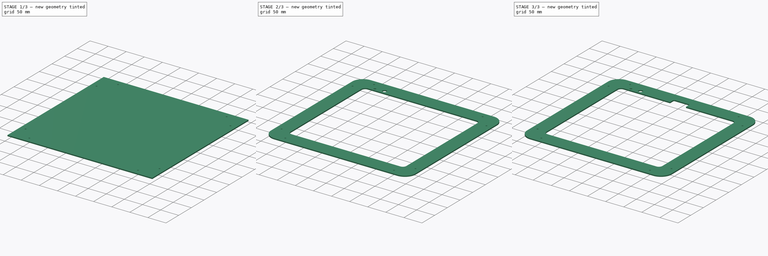
[diagram: build sequence overview — one tinted view per stage of 3, left to right]
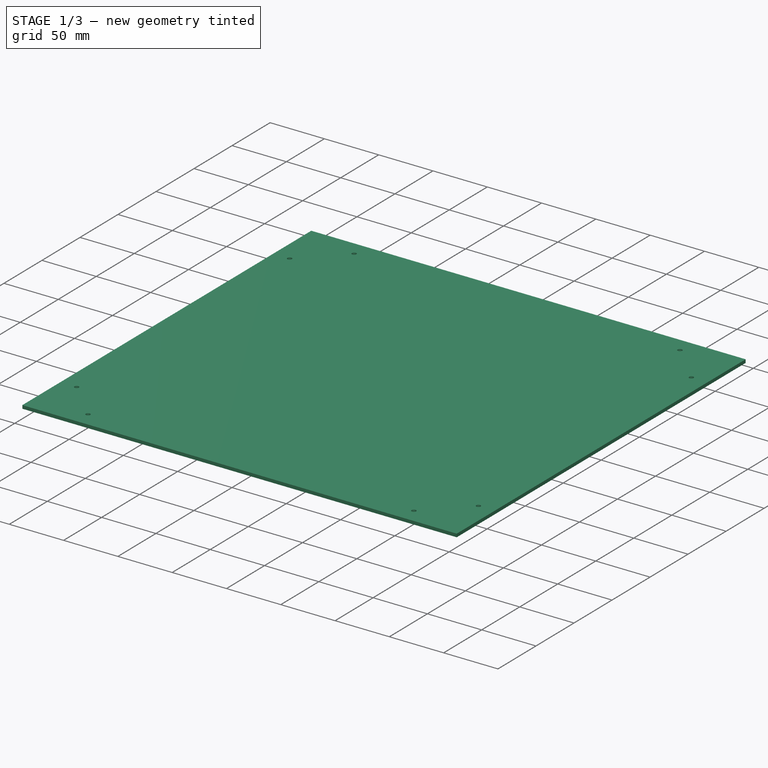
[diagram: stage 1 of 3 — iso view after this stage's code; geometry added in this stage tinted green]
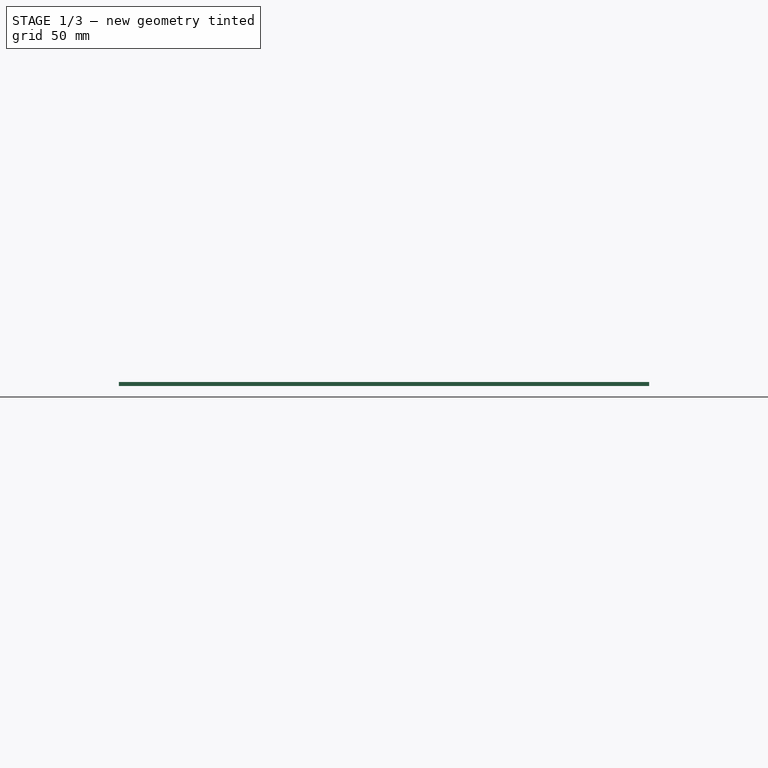
[diagram: stage 1 of 3 — front view after this stage's code; geometry added in this stage tinted green]
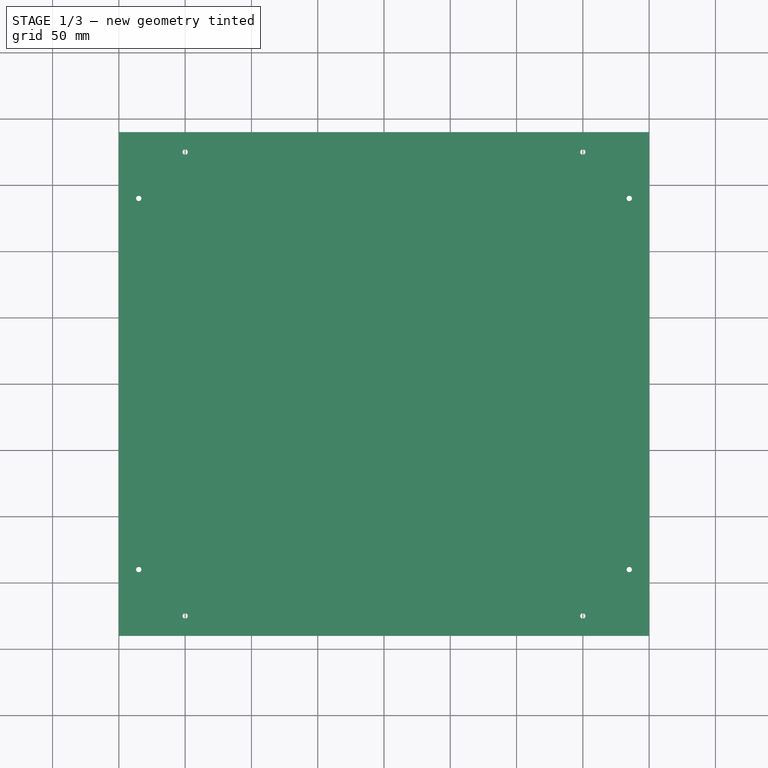
[diagram: stage 1 of 3 — top view after this stage's code; geometry added in this stage tinted green]
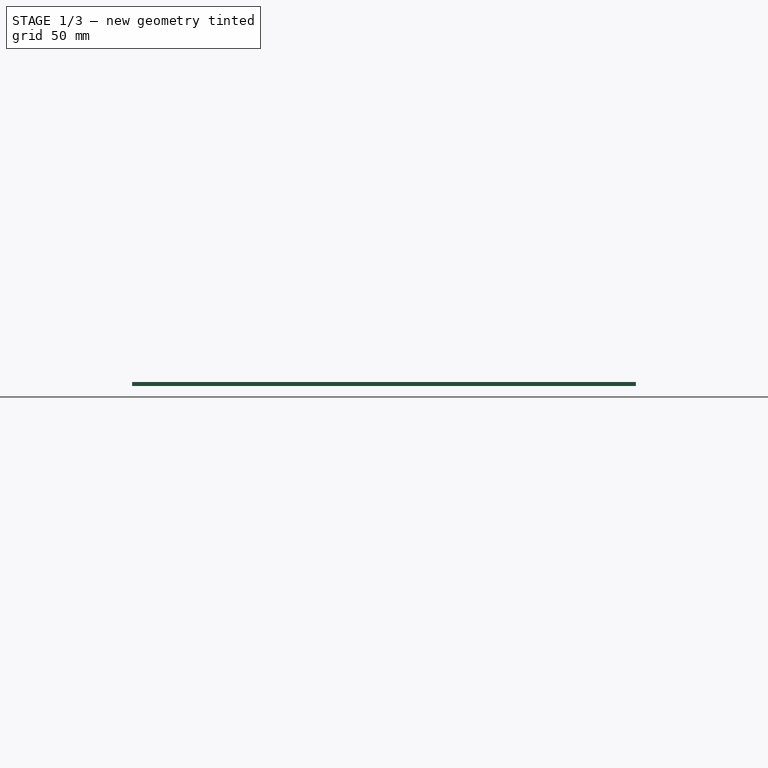
[diagram: stage 1 of 3 — right view after this stage's code; geometry added in this stage tinted green]
FCSTD DOCUMENT  (FreeCAD 0.17R13519 (Git))
Label: Corelia_0_Top_plate
License: All rights reserved
LicenseURL: http://en.wikipedia.org/wiki/All_rights_reserved
objects: Sketcher::SketchObject×5, PartDesign::Pocket×4, PartDesign::Fillet×2, PartDesign::Pad×1, PartDesign::Body×1, TechDraw::DrawSVGTemplate×1, TechDraw::DrawViewPart×1, TechDraw::DrawPage×1
note: 18 computed .brp shape members not serialized (recipe doc carries the construction recipe); baked Part::Feature solids carry a one-line shape summary decoded from their .brp

FEATURE [Sketcher::SketchObject] Sketch
  MapMode = 5
  Support = -> [XY_Plane]
  sketch-geometry (4):
    g0: LineSegment StartX=-200 StartY=190 StartZ=0 EndX=200 EndY=190 EndZ=0
    g1: LineSegment StartX=200 StartY=190 StartZ=0 EndX=200 EndY=-190 EndZ=0
    g2: LineSegment StartX=200 StartY=-190 StartZ=0 EndX=-200 EndY=-190 EndZ=0
    g3: LineSegment StartX=-200 StartY=-190 StartZ=0 EndX=-200 EndY=190 EndZ=0
  constraints (12):
    c: Coincident(g0,g1)
    c: Coincident(g1,g2)
    c: Coincident(g2,g3)
    c: Coincident(g3,g0)
    c: Horizontal(g0)
    c: Horizontal(g2)
    c: Vertical(g1)
    c: Vertical(g3)
    c: Symmetric(g0,g0,g-2)
    c: Symmetric(g0,g2,g-1)
    c: DistanceY(g3,g3) = 380
    c: DistanceX(g2,g2) = 400
FEATURE [PartDesign::Pad] Pad
  Length = 3
  Length2 = 100
  Profile = -> Sketch
  Type = 0
FEATURE [Sketcher::SketchObject] Sketch001
  MapMode = 5
  Placement = pos=(0,0,3) rot=(0,0,1;0rad)
  Support = -> [Pad]
  sketch-geometry (16):
    g0: LineSegment [constr] StartX=-185 StartY=140 StartZ=0 EndX=185 EndY=140 EndZ=0
    g1: LineSegment [constr] StartX=185 StartY=140 StartZ=0 EndX=185 EndY=-140 EndZ=0
    g2: LineSegment [constr] StartX=185 StartY=-140 StartZ=0 EndX=-185 EndY=-140 EndZ=0
    g3: LineSegment [constr] StartX=-185 StartY=-140 StartZ=0 EndX=-185 EndY=140 EndZ=0
    g4: LineSegment [constr] StartX=-150 StartY=175 StartZ=0 EndX=150 EndY=175 EndZ=0
    g5: LineSegment [constr] StartX=150 StartY=175 StartZ=0 EndX=150 EndY=-175 EndZ=0
    g6: LineSegment [constr] StartX=150 StartY=-175 StartZ=0 EndX=-150 EndY=-175 EndZ=0
    g7: LineSegment [constr] StartX=-150 StartY=-175 StartZ=0 EndX=-150 EndY=175 EndZ=0
    g8: Circle CenterX=-150 CenterY=175 CenterZ=0 NormalX=0 NormalY=0 NormalZ=1 AngleXU=0 Radius=2
    g9: Circle CenterX=-185 CenterY=140 CenterZ=0 NormalX=0 NormalY=0 NormalZ=1 AngleXU=0 Radius=2
    g10: Circle CenterX=-185 CenterY=-140 CenterZ=0 NormalX=0 NormalY=0 NormalZ=1 AngleXU=0 Radius=2
    g11: Circle CenterX=-150 CenterY=-175 CenterZ=0 NormalX=0 NormalY=0 NormalZ=1 AngleXU=0 Radius=2
    g12: Circle CenterX=150 CenterY=-175 CenterZ=0 NormalX=0 NormalY=0 NormalZ=1 AngleXU=0 Radius=2
    g13: Circle CenterX=185 CenterY=-140 CenterZ=0 NormalX=0 NormalY=0 NormalZ=1 AngleXU=0 Radius=2
    g14: Circle CenterX=185 CenterY=140 CenterZ=0 NormalX=0 NormalY=0 NormalZ=1 AngleXU=0 Radius=2
    g15: Circle CenterX=150 CenterY=175 CenterZ=0 NormalX=0 NormalY=0 NormalZ=1 AngleXU=0 Radius=2
  constraints (40):
    c: Coincident(g0,g1)
    c: Coincident(g1,g2)
    c: Coincident(g2,g3)
    c: Coincident(g3,g0)
    c: Horizontal(g0)
    c: Horizontal(g2)
    c: Vertical(g1)
    c: Vertical(g3)
    c: Coincident(g4,g5)
    c: Coincident(g5,g6)
    c: Coincident(g6,g7)
    c: Coincident(g7,g4)
    c: Horizontal(g4)
    c: Horizontal(g6)
    c: Vertical(g5)
    c: Vertical(g7)
    c: Coincident(g8,g4)
    c: Coincident(g9,g0)
    c: Coincident(g10,g2)
    c: Coincident(g11,g6)
    c: Coincident(g12,g5)
    c: Coincident(g13,g1)
    c: Coincident(g14,g0)
    c: Coincident(g15,g4)
    c: Equal(g9,g8)
    c: Equal(g8,g15)
    c: Equal(g15,g14)
    c: Equal(g14,g13)
    c: Equal(g13,g12)
    c: Equal(g12,g11)
    c: Equal(g11,g10)
    c: Radius(g9) = 2
    c: Symmetric(g4,g6,g-1)
    c: Symmetric(g2,g0,g-1)
    c: Symmetric(g4,g4,g-2)
    c: Symmetric(g0,g0,g-2)
    c: DistanceY(g3,g3) = 280
    c: DistanceY(g7,g7) = 350
    c: DistanceX(g6,g6) = 300
    c: DistanceX(g2,g2) = 370
FEATURE [PartDesign::Pocket] Pocket
  BaseFeature = -> Pad
  Length = 5
  Length2 = 100
  Profile = -> Sketch001
  Type = 1
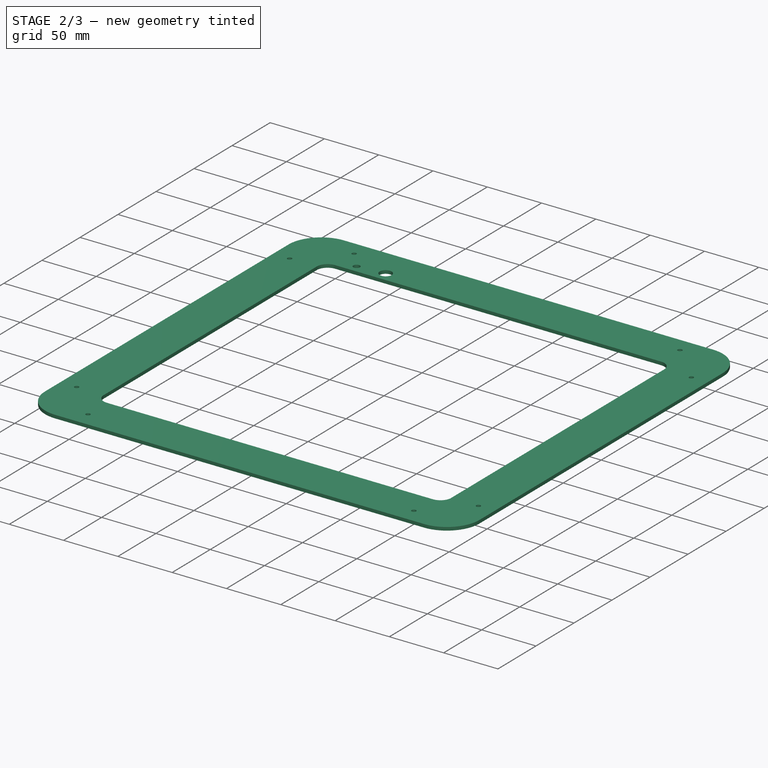
[diagram: stage 2 of 3 — iso view after this stage's code; geometry added in this stage tinted green]
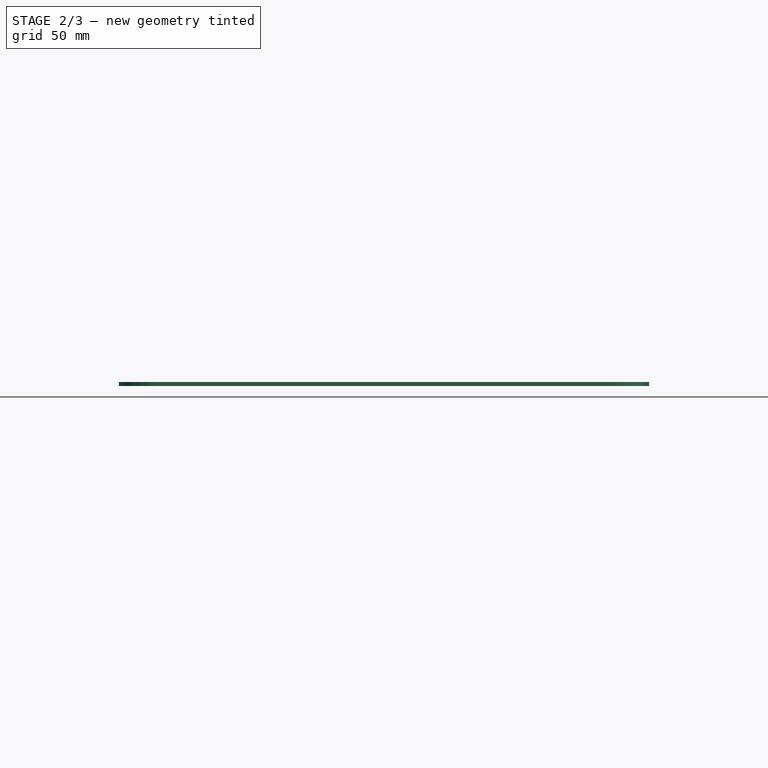
[diagram: stage 2 of 3 — front view after this stage's code; geometry added in this stage tinted green]
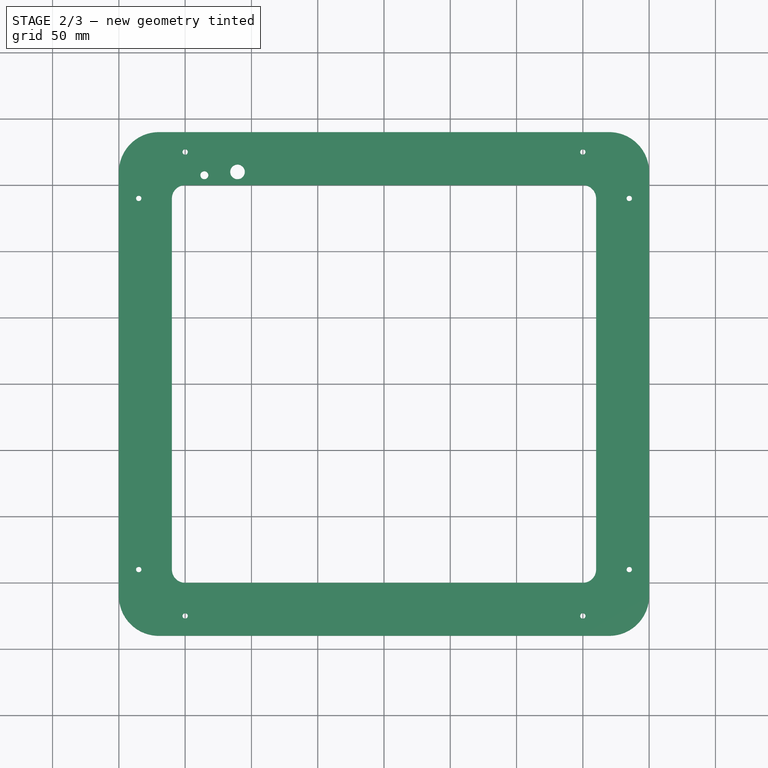
[diagram: stage 2 of 3 — top view after this stage's code; geometry added in this stage tinted green]
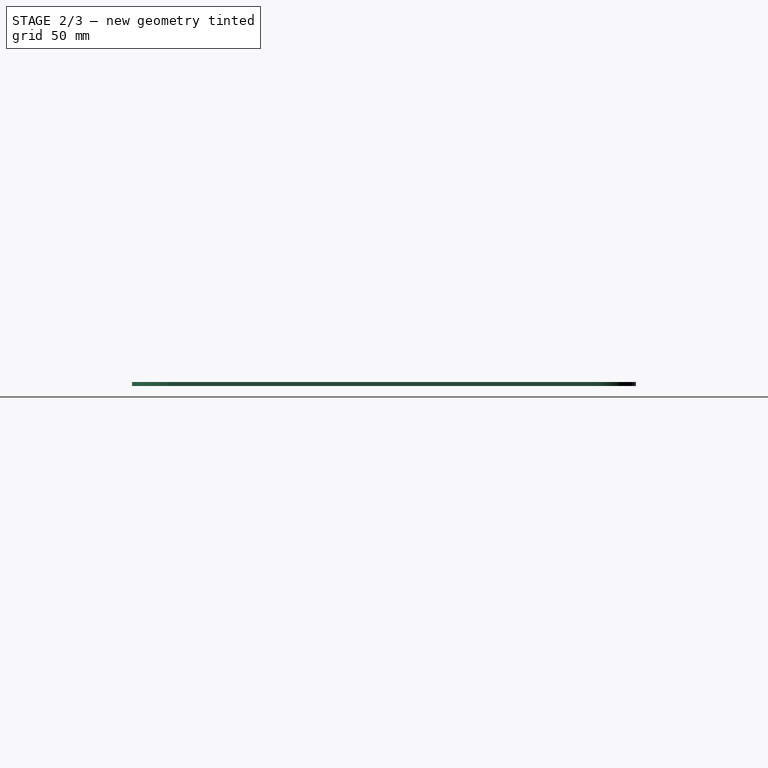
[diagram: stage 2 of 3 — right view after this stage's code; geometry added in this stage tinted green]
FEATURE [Sketcher::SketchObject] Sketch002
  MapMode = 5
  Placement = pos=(0,0,3) rot=(0,0,1;0rad)
  Support = -> [Pocket]
  sketch-geometry (8):
    g0: LineSegment StartX=-150 StartY=150 StartZ=0 EndX=150 EndY=150 EndZ=0
    g1: LineSegment StartX=160 StartY=140 StartZ=0 EndX=160 EndY=-140 EndZ=0
    g2: LineSegment StartX=150 StartY=-150 StartZ=0 EndX=-150 EndY=-150 EndZ=0
    g3: LineSegment StartX=-160 StartY=-140 StartZ=0 EndX=-160 EndY=140 EndZ=0
    g4: ArcOfCircle CenterX=-150 CenterY=140 CenterZ=0 NormalX=0 NormalY=0 NormalZ=1 AngleXU=0 Radius=10 StartAngle=1.5708 EndAngle=3.14159
    g5: ArcOfCircle CenterX=150 CenterY=140 CenterZ=0 NormalX=0 NormalY=0 NormalZ=1 AngleXU=0 Radius=10 StartAngle=0 EndAngle=1.5708
    g6: ArcOfCircle CenterX=-150 CenterY=-140 CenterZ=0 NormalX=0 NormalY=0 NormalZ=1 AngleXU=0 Radius=10 StartAngle=3.14159 EndAngle=4.71239
    g7: ArcOfCircle CenterX=150 CenterY=-140 CenterZ=0 NormalX=0 NormalY=0 NormalZ=1 AngleXU=0 Radius=10 StartAngle=4.71239 EndAngle=6.28319
  constraints (21):
    c: Horizontal(g0)
    c: Horizontal(g2)
    c: Vertical(g1)
    c: Vertical(g3)
    c: Tangent(g0,g4) = 1.5708
    c: Tangent(g3,g4) = 1.5708
    c: Tangent(g0,g5) = 1.5708
    c: Tangent(g1,g5) = 1.5708
    c: Tangent(g3,g6) = 1.5708
    c: Tangent(g2,g6) = 1.5708
    c: Tangent(g2,g7) = 1.5708
    c: Tangent(g1,g7) = 1.5708
    c: Equal(g6,g4)
    c: Equal(g4,g5)
    c: Equal(g3,g1)
    c: Equal(g0,g2)
    c: Radius(g4) = 10
    c: Symmetric(g6,g7,g-2)
    c: Symmetric(g4,g6,g-1)
    c: DistanceX(g3,g1) = 320
    c: DistanceY(g2,g0) = 300
FEATURE [PartDesign::Pocket] Pocket001
  BaseFeature = -> Pocket
  Length = 5
  Length2 = 100
  Profile = -> Sketch002
  Type = 1
FEATURE [Sketcher::SketchObject] Sketch003
  MapMode = 5
  Placement = pos=(0,0,3) rot=(0,0,1;0rad)
  Support = -> [Pocket001]
  sketch-geometry (4):
    g0: Circle CenterX=-135.5 CenterY=157.5 CenterZ=0 NormalX=0 NormalY=0 NormalZ=1 AngleXU=0 Radius=3
    g1: Circle CenterX=-110.5 CenterY=160 CenterZ=0 NormalX=0 NormalY=0 NormalZ=1 AngleXU=0 Radius=5.5
    g2: LineSegment [constr] StartX=-110.5 StartY=154.5 StartZ=0 EndX=-135.5 EndY=154.5 EndZ=0
    g3: LineSegment [constr] StartX=-135.5 StartY=157.5 StartZ=0 EndX=-135.5 EndY=154.5 EndZ=0
  constraints (12):
    c: Radius(g0) = 3
    c: Radius(g1) = 5.5
    c: DistanceX(g0,g1) = 25
    c: DistanceX(g1) = -110.5
    c: DistanceY(g1) = 160
    c: PointOnObject(g2,g1)
    c: PointOnObject(g2,g0)
    c: Tangent(g2,g1)
    c: Horizontal(g2)
    c: Coincident(g3,g0)
    c: Coincident(g3,g2)
    c: Vertical(g3)
FEATURE [PartDesign::Pocket] Pocket002
  BaseFeature = -> Pocket001
  Length = 5
  Length2 = 100
  Profile = -> Sketch003
  Type = 1
FEATURE [PartDesign::Fillet] Fillet
  Base = -> Pocket002 [Edge5,Edge1,Edge2,Edge8]
  BaseFeature = -> Pocket002
  Radius = 30.16
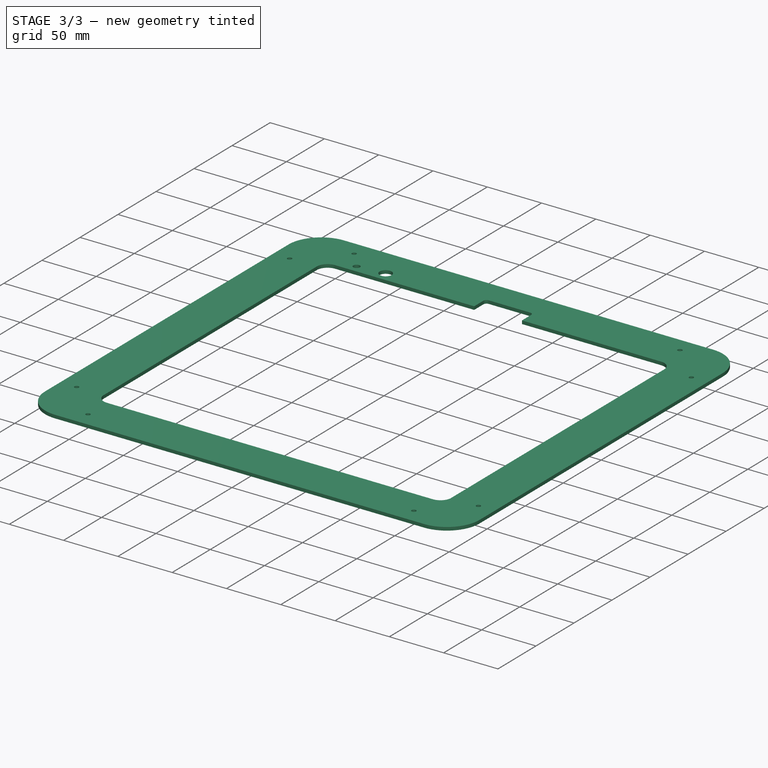
[diagram: stage 3 of 3 — iso view after this stage's code; geometry added in this stage tinted green]
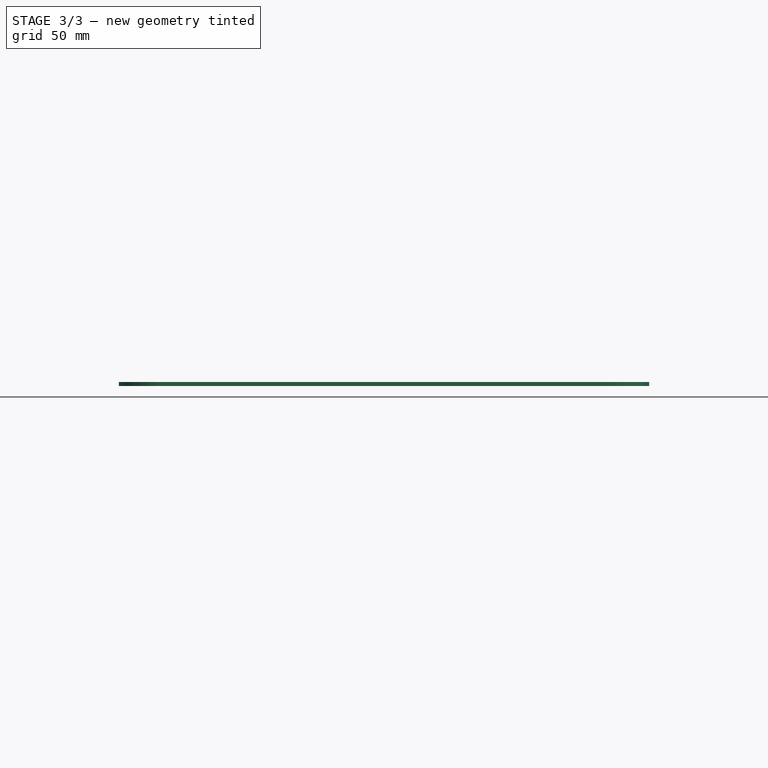
[diagram: stage 3 of 3 — front view after this stage's code; geometry added in this stage tinted green]
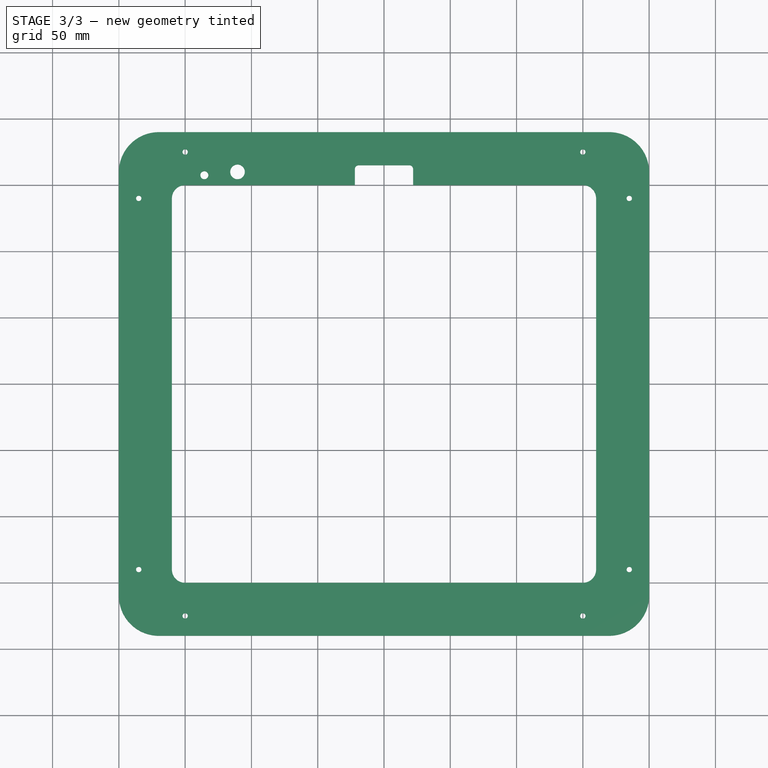
[diagram: stage 3 of 3 — top view after this stage's code; geometry added in this stage tinted green]
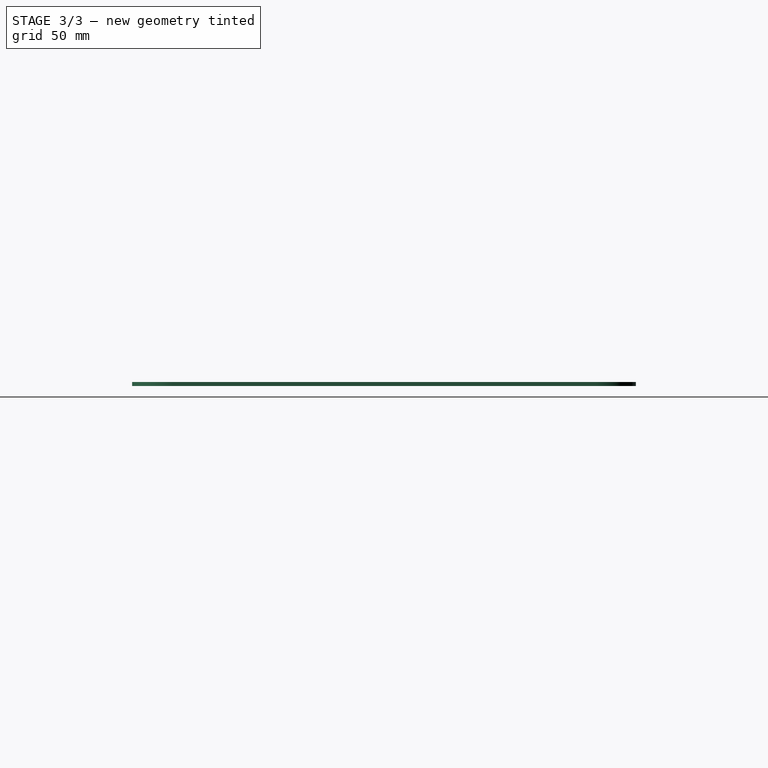
[diagram: stage 3 of 3 — right view after this stage's code; geometry added in this stage tinted green]
FEATURE [Sketcher::SketchObject] Sketch004
  MapMode = 5
  Placement = pos=(0,0,3) rot=(0,0,1;0rad)
  Support = -> [Fillet]
  sketch-geometry (4):
    g0: LineSegment StartX=-22 StartY=165 StartZ=0 EndX=22 EndY=165 EndZ=0
    g1: LineSegment StartX=22 StartY=165 StartZ=0 EndX=22 EndY=121 EndZ=0
    g2: LineSegment StartX=22 StartY=121 StartZ=0 EndX=-22 EndY=121 EndZ=0
    g3: LineSegment StartX=-22 StartY=121 StartZ=0 EndX=-22 EndY=165 EndZ=0
  constraints (12):
    c: Coincident(g0,g1)
    c: Coincident(g1,g2)
    c: Coincident(g2,g3)
    c: Coincident(g3,g0)
    c: Horizontal(g0)
    c: Horizontal(g2)
    c: Vertical(g1)
    c: Vertical(g3)
    c: DistanceY(g3,g3) = 44
    c: DistanceX(g2,g2) = 44
    c: Symmetric(g2,g1,g-2)
    c: DistanceY(g1) = 121
FEATURE [PartDesign::Pocket] Pocket003
  BaseFeature = -> Fillet
  Length = 5
  Length2 = 100
  Profile = -> Sketch004
  Type = 1
FEATURE [PartDesign::Fillet] Fillet001
  Base = -> Pocket003 [Edge78,Edge79]
  BaseFeature = -> Pocket003
  Radius = 3
FEATURE [PartDesign::Body] Body
  Group = -> [Sketch,Pad,Sketch001,Pocket,Sketch002,Pocket001,Sketch003,Pocket002,Fillet,Sketch004,Pocket003,Fillet001]
  Origin = -> Origin
  Tip = -> Fillet001
FEATURE [TechDraw::DrawSVGTemplate] Template
  Height = 420
  Orientation = 1
  Width = 594
FEATURE [TechDraw::DrawViewPart] View
  CoarseView = false
  Direction = (0,0,1)
  Focus = 100
  HardHidden = false
  IsoCount = 0
  IsoHidden = false
  IsoVisible = false
  LockPosition = false
  Perspective = false
  Rotation = 0
  ScaleType = 0
  SeamHidden = false
  SeamVisible = false
  SmoothHidden = false
  SmoothVisible = false
  Source = -> [Fillet001]
  X = 297
  Y = 210
FEATURE [TechDraw::DrawPage] Page
  KeepUpdated = true
  ProjectionType = 0
  Template = -> Template
  Views = -> [View]
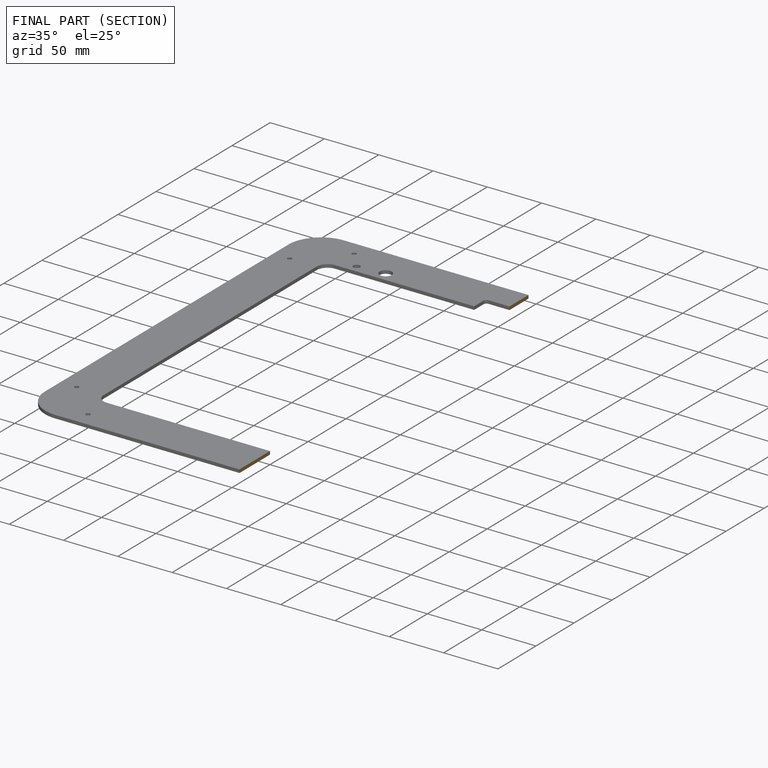
[diagram: finished part — half-section view (interior)]
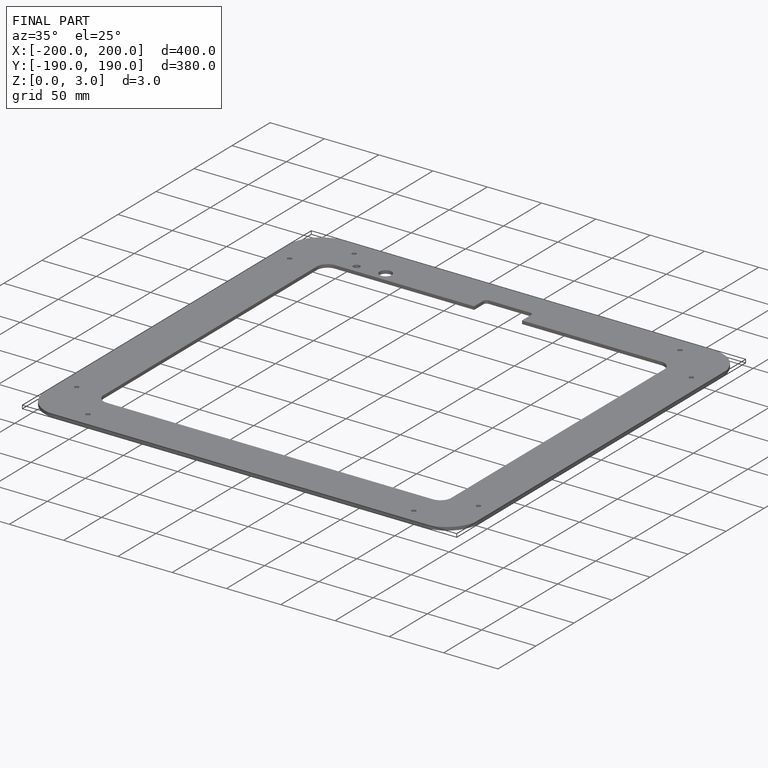
[diagram: finished part — iso view with bounding-box wireframe]
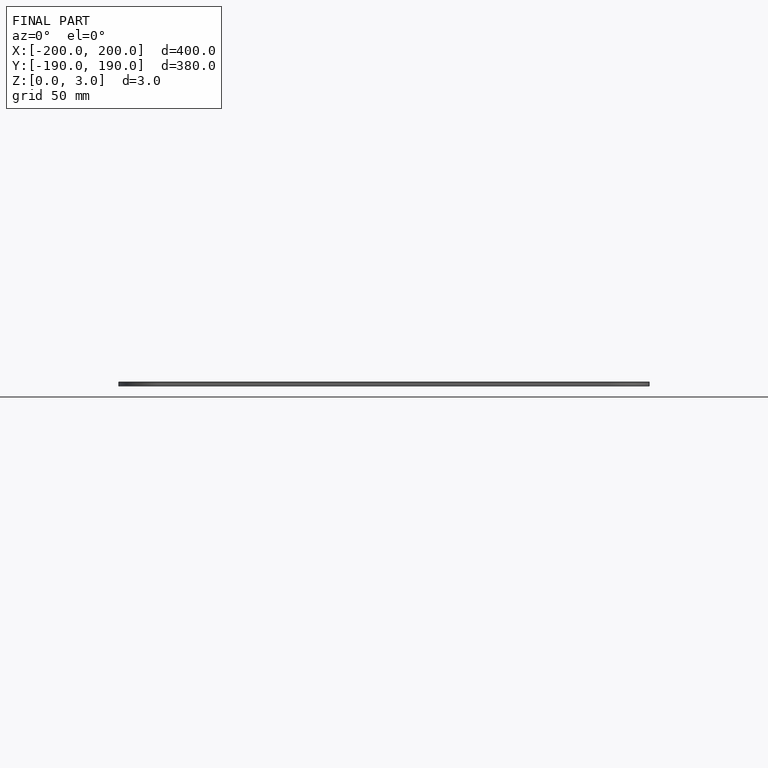
[diagram: finished part — front view with bounding-box wireframe]
